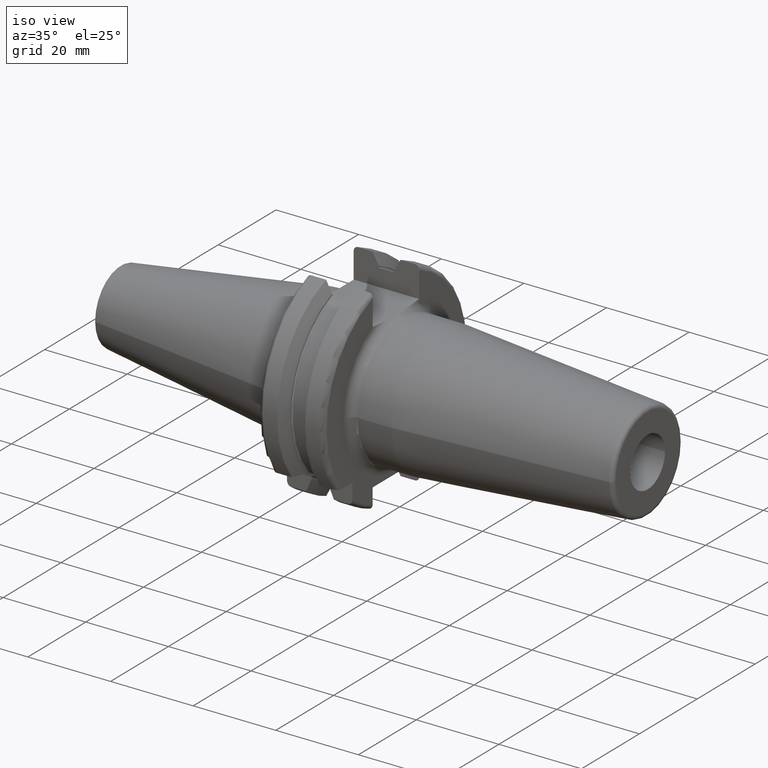
[diagram: clean part render]
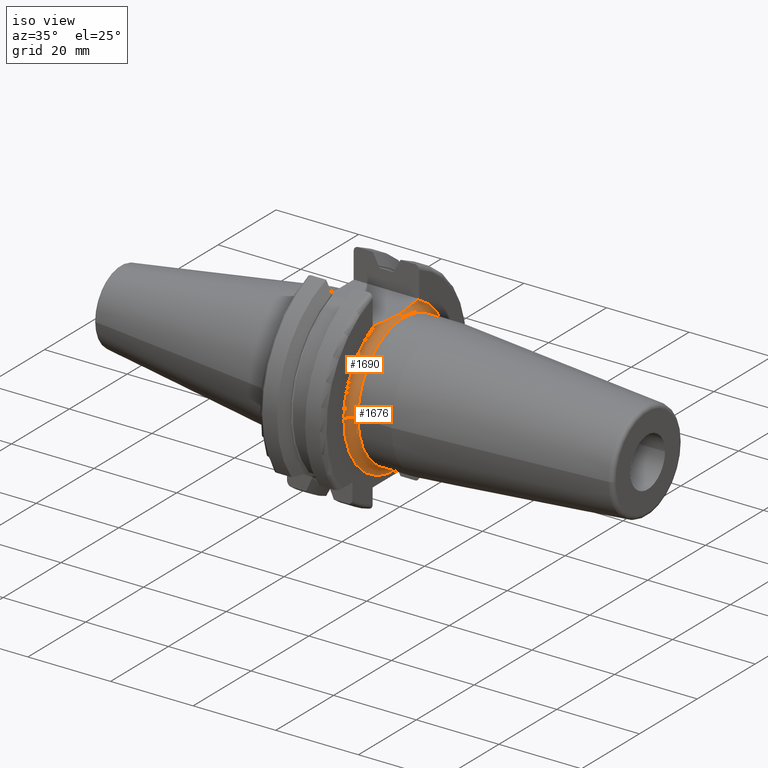
[diagram: same view with one multi-face feature highlighted, each face labeled with its STEP entity id]
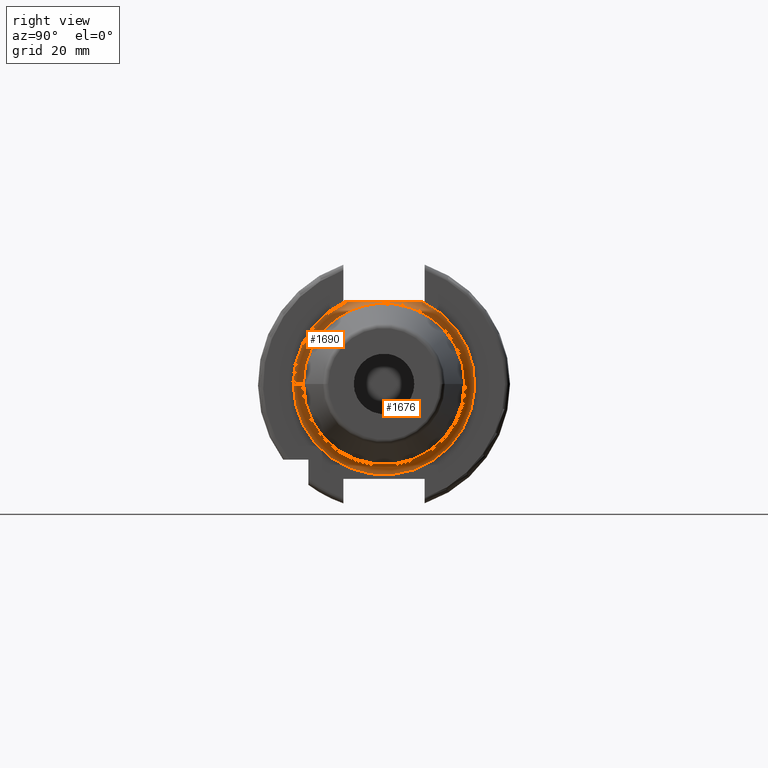
[diagram: same view with one multi-face feature highlighted, each face labeled with its STEP entity id]
A machine part, iso view. The highlighted faces form ONE feature: a constant-radius fillet chain: 2 tangent blend faces with common blend radius 2 mm. The faces share edges in the B-rep.
A second angle (right view) of the same feature is appended — it is thin or edge-on in the first view.
Their STEP definitions:
[1] entity #1676 (Torus):
#177=CARTESIAN_POINT('',(1.905E1,0.E0,0.E0));
#178=DIRECTION('',(-1.E0,0.E0,0.E0));
#179=DIRECTION('',(0.E0,4.242261288291E-1,9.055562884872E-1));
#180=AXIS2_PLACEMENT_3D('',#177,#178,#179);
#182=CARTESIAN_POINT('',(2.105E1,-1.8E1,6.830369603250E-13));
#183=DIRECTION('',(0.E0,-3.794534131352E-14,-1.E0));
#184=DIRECTION('',(-1.E0,1.278976924368E-13,0.E0));
#185=AXIS2_PLACEMENT_3D('',#182,#183,#184);
#187=CARTESIAN_POINT('',(1.905E1,7.636039896084E0,1.630002208209E1));
#188=CARTESIAN_POINT('',(1.905E1,7.291763343909E0,1.630002208209E1));
#189=CARTESIAN_POINT('',(1.908137784568E1,6.593773973026E0,1.629998975167E1));
#190=CARTESIAN_POINT('',(1.920812730181E1,5.491495649704E0,1.630000274604E1));
#191=CARTESIAN_POINT('',(1.938403963995E1,4.413604792073E0,1.629999926418E1));
#192=CARTESIAN_POINT('',(1.958165543689E1,3.358510638508E0,1.630000019723E1));
#193=CARTESIAN_POINT('',(1.977302991436E1,2.327061789655E0,1.629999994690E1));
#194=CARTESIAN_POINT('',(1.993755594715E1,1.260831732352E0,1.630000001517E1));
#195=CARTESIAN_POINT('',(1.999627977224E1,4.367002982890E-1,1.63E1));
#196=CARTESIAN_POINT('',(1.999643398435E1,3.596892277610E-3,1.63E1));
#198=CARTESIAN_POINT('',(1.999643398435E1,3.596892277610E-3,1.63E1));
#209=CARTESIAN_POINT('',(2.105E1,3.972028185310E-3,1.799999956175E1));
#210=DIRECTION('',(0.E0,-9.999999756528E-1,2.206682325172E-4));
#211=DIRECTION('',(-5.267830078229E-1,-1.875679538525E-4,-8.499997808749E-1));
#212=AXIS2_PLACEMENT_3D('',#209,#210,#211);
#214=CARTESIAN_POINT('',(2.105E1,0.E0,0.E0));
#215=DIRECTION('',(1.E0,0.E0,0.E0));
#216=DIRECTION('',(0.E0,1.E0,0.E0));
#217=AXIS2_PLACEMENT_3D('',#214,#215,#216);
#229=CARTESIAN_POINT('',(2.105E1,0.E0,0.E0));
#230=DIRECTION('',(1.E0,0.E0,0.E0));
#231=DIRECTION('',(0.E0,-1.E0,0.E0));
#232=AXIS2_PLACEMENT_3D('',#229,#230,#231);
#1425=CARTESIAN_POINT('',(2.105E1,-1.6E1,0.E0));
#1426=CARTESIAN_POINT('',(2.105E1,1.6E1,0.E0));
#1427=VERTEX_POINT('',#1425);
#1428=VERTEX_POINT('',#1426);
#1429=CARTESIAN_POINT('',(2.105E1,3.619504079368E-3,1.599999959060E1));
#1430=VERTEX_POINT('',#1429);
#1432=CARTESIAN_POINT('',(1.905E1,-1.8E1,0.E0));
#1434=VERTEX_POINT('',#1432);
#1435=CARTESIAN_POINT('',(1.905E1,7.636039896084E0,1.630002208209E1));
#1436=VERTEX_POINT('',#1435);
#1437=VERTEX_POINT('',#198);
#1659=CARTESIAN_POINT('',(2.105E1,0.E0,0.E0));
#1660=DIRECTION('',(1.E0,0.E0,0.E0));
#1661=DIRECTION('',(0.E0,9.999538195003E-1,-9.610352060314E-3));
#1662=AXIS2_PLACEMENT_3D('',#1659,#1660,#1661);
#1663=TOROIDAL_SURFACE('',#1662,1.8E1,2.E0);
#1664=ORIENTED_EDGE('',*,*,#1630,.T.);
#1666=ORIENTED_EDGE('',*,*,#1665,.T.);
#1668=ORIENTED_EDGE('',*,*,#1667,.T.);
#1670=ORIENTED_EDGE('',*,*,#1669,.T.);
#1672=ORIENTED_EDGE('',*,*,#1671,.F.);
#1673=ORIENTED_EDGE('',*,*,#1607,.F.);
#1674=EDGE_LOOP('',(#1664,#1666,#1668,#1670,#1672,#1673));
#1675=FACE_OUTER_BOUND('',#1674,.F.);
#1676=ADVANCED_FACE('',(#1675),#1663,.F.);
#181=CIRCLE('',#180,1.8E1);
#186=CIRCLE('',#185,2.E0);
#197=B_SPLINE_CURVE_WITH_KNOTS('',3,(#187,#188,#189,#190,#191,#192,#193,#194,
#195,#196),.UNSPECIFIED.,.F.,.F.,(4,1,1,1,1,1,1,4),(0.E0,1.428571428571E-1,
2.857142857143E-1,4.285714285714E-1,5.714285714286E-1,7.142857142857E-1,
8.571428571429E-1,1.E0),.UNSPECIFIED.);
#213=CIRCLE('',#212,2.E0);
#218=CIRCLE('',#217,1.6E1);
#233=CIRCLE('',#232,1.6E1);
#1607=EDGE_CURVE('',#1436,#1437,#197,.T.);
#1630=EDGE_CURVE('',#1436,#1434,#181,.T.);
#1665=EDGE_CURVE('',#1434,#1427,#186,.T.);
#1667=EDGE_CURVE('',#1427,#1428,#233,.T.);
#1669=EDGE_CURVE('',#1428,#1430,#218,.T.);
#1671=EDGE_CURVE('',#1437,#1430,#213,.T.);
[2] entity #1690 (Torus):
#172=CARTESIAN_POINT('',(1.905E1,0.E0,0.E0));
#173=DIRECTION('',(1.E0,0.E0,0.E0));
#174=DIRECTION('',(0.E0,-4.242280849419E-1,9.055553721041E-1));
#175=AXIS2_PLACEMENT_3D('',#172,#173,#174);
#182=CARTESIAN_POINT('',(2.105E1,-1.8E1,6.830369603250E-13));
#183=DIRECTION('',(0.E0,-3.794534131352E-14,-1.E0));
#184=DIRECTION('',(-1.E0,1.278976924368E-13,0.E0));
#185=AXIS2_PLACEMENT_3D('',#182,#183,#184);
#198=CARTESIAN_POINT('',(1.999643398435E1,3.596892277610E-3,1.63E1));
#199=CARTESIAN_POINT('',(1.999658834906E1,-4.299350802492E-1,1.63E1));
#200=CARTESIAN_POINT('',(1.993831156873E1,-1.254935551175E0,1.630000000273E1));
#201=CARTESIAN_POINT('',(1.977381178859E1,-2.322674485572E0,1.629999999044E1));
#202=CARTESIAN_POINT('',(1.958231074555E1,-3.355080396392E0,1.630000003550E1));
#203=CARTESIAN_POINT('',(1.938448877613E1,-4.411063006171E0,1.629999986754E1));
#204=CARTESIAN_POINT('',(1.920837291690E1,-5.489679660263E0,1.630000049432E1));
#205=CARTESIAN_POINT('',(1.908141756301E1,-6.593007123383E0,1.629999815517E1));
#206=CARTESIAN_POINT('',(1.905E1,-7.291579317371E0,1.630000397505E1));
#207=CARTESIAN_POINT('',(1.905E1,-7.636092860314E0,1.630000397505E1));
#209=CARTESIAN_POINT('',(2.105E1,3.972028185310E-3,1.799999956175E1));
#210=DIRECTION('',(0.E0,-9.999999756528E-1,2.206682325172E-4));
#211=DIRECTION('',(-5.267830078229E-1,-1.875679538525E-4,-8.499997808749E-1));
#212=AXIS2_PLACEMENT_3D('',#209,#210,#211);
#224=CARTESIAN_POINT('',(2.105E1,0.E0,0.E0));
#225=DIRECTION('',(1.E0,0.E0,0.E0));
#226=DIRECTION('',(0.E0,2.262190049605E-4,9.999999744125E-1));
#227=AXIS2_PLACEMENT_3D('',#224,#225,#226);
#1425=CARTESIAN_POINT('',(2.105E1,-1.6E1,0.E0));
#1427=VERTEX_POINT('',#1425);
#1429=CARTESIAN_POINT('',(2.105E1,3.619504079368E-3,1.599999959060E1));
#1430=VERTEX_POINT('',#1429);
#1431=CARTESIAN_POINT('',(1.905E1,-7.636105528954E0,1.629999669787E1));
#1432=CARTESIAN_POINT('',(1.905E1,-1.8E1,0.E0));
#1433=VERTEX_POINT('',#1431);
#1434=VERTEX_POINT('',#1432);
#1437=VERTEX_POINT('',#198);
#1677=CARTESIAN_POINT('',(2.105E1,0.E0,0.E0));
#1678=DIRECTION('',(1.E0,0.E0,0.E0));
#1679=DIRECTION('',(0.E0,1.485959642860E-3,-9.999988959614E-1));
#1680=AXIS2_PLACEMENT_3D('',#1677,#1678,#1679);
#1681=TOROIDAL_SURFACE('',#1680,1.8E1,2.E0);
#1683=ORIENTED_EDGE('',*,*,#1682,.T.);
#1684=ORIENTED_EDGE('',*,*,#1665,.F.);
#1685=ORIENTED_EDGE('',*,*,#1654,.F.);
#1686=ORIENTED_EDGE('',*,*,#1609,.F.);
#1687=ORIENTED_EDGE('',*,*,#1671,.T.);
#1688=EDGE_LOOP('',(#1683,#1684,#1685,#1686,#1687));
#1689=FACE_OUTER_BOUND('',#1688,.F.);
#1690=ADVANCED_FACE('',(#1689),#1681,.F.);
#176=CIRCLE('',#175,1.8E1);
#186=CIRCLE('',#185,2.E0);
#208=B_SPLINE_CURVE_WITH_KNOTS('',3,(#198,#199,#200,#201,#202,#203,#204,#205,
#206,#207),.UNSPECIFIED.,.F.,.F.,(4,1,1,1,1,1,1,4),(0.E0,1.428571428571E-1,
2.857142857143E-1,4.285714285714E-1,5.714285714286E-1,7.142857142857E-1,
8.571428571429E-1,1.E0),.UNSPECIFIED.);
#213=CIRCLE('',#212,2.E0);
#228=CIRCLE('',#227,1.6E1);
#1609=EDGE_CURVE('',#1437,#1433,#208,.T.);
#1654=EDGE_CURVE('',#1433,#1434,#176,.T.);
#1665=EDGE_CURVE('',#1434,#1427,#186,.T.);
#1671=EDGE_CURVE('',#1437,#1430,#213,.T.);
#1682=EDGE_CURVE('',#1430,#1427,#228,.T.);